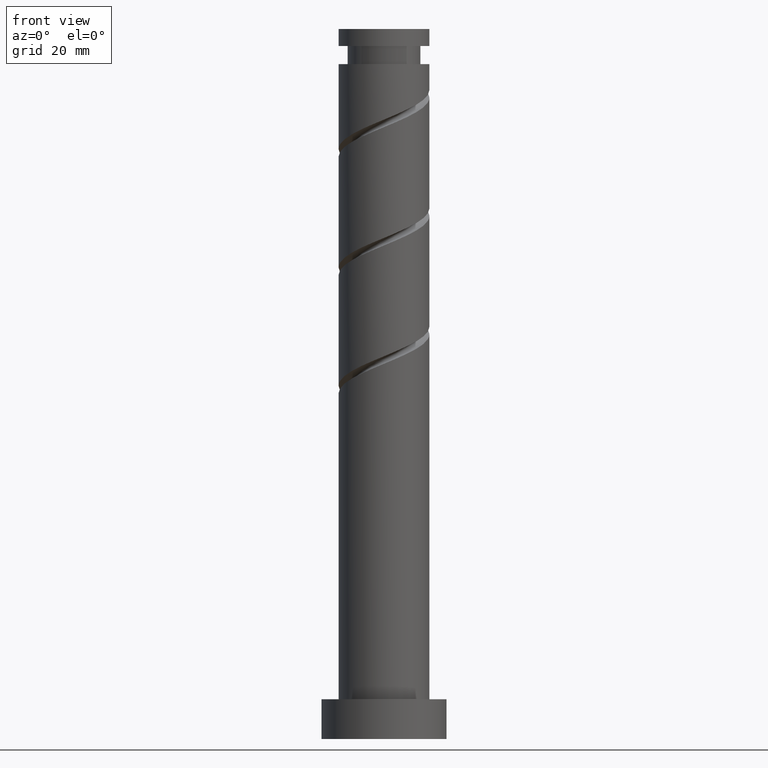
[diagram: clean part render]
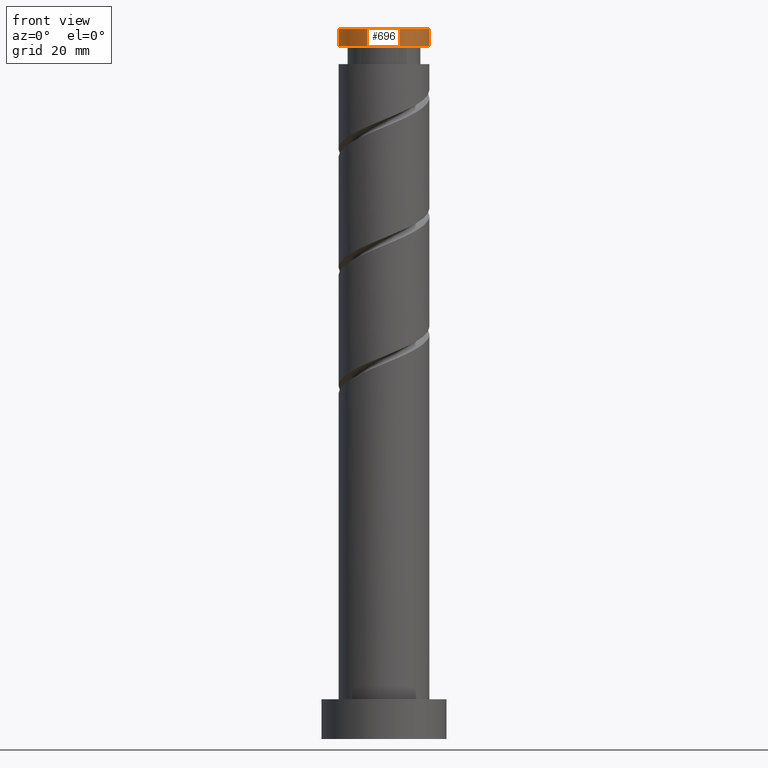
[diagram: same view with one face highlighted and labeled with its STEP entity id]
A machine part, front view. The second image highlights one B-rep face of the part: STEP entity #696.
In plain terms, the highlighted cylindrical surface (partial cylindrical patch) has radius 8 mm, axis along (-0, -0, -1).
Its self-contained STEP definition (entity closure, byte-faithful):
#4 = CARTESIAN_POINT ( 'NONE',  ( 0.000000000000000000, 0.000000000000000000, 122.0170400668946371 ) ) ;
#10 = DIRECTION ( 'NONE',  ( -1.000000000000000000, 0.000000000000000000, 0.000000000000000000 ) ) ;
#77 = CARTESIAN_POINT ( 'NONE',  ( 0.000000000000000000, 0.000000000000000000, 125.0000000000000000 ) ) ;
#108 = ORIENTED_EDGE ( 'NONE', *, *, #455, .F. ) ;
#110 = AXIS2_PLACEMENT_3D ( 'NONE', #4, #606, #10 ) ;
#190 = CARTESIAN_POINT ( 'NONE',  ( 7.999999999999998224, 9.797174393178823685E-16, 122.0170400668946371 ) ) ;
#281 = ORIENTED_EDGE ( 'NONE', *, *, #1257, .T. ) ;
#308 = ORIENTED_EDGE ( 'NONE', *, *, #1207, .F. ) ;
#310 = VECTOR ( 'NONE', #701, 1000.000000000000000 ) ;
#333 = VERTEX_POINT ( 'NONE', #431 ) ;
#380 = EDGE_LOOP ( 'NONE', ( #308, #1070, #281, #108 ) ) ;
#414 = CARTESIAN_POINT ( 'NONE',  ( 8.000000000000000000, 9.797174393178825657E-16, 125.0000000000000000 ) ) ;
#417 = CARTESIAN_POINT ( 'NONE',  ( 0.000000000000000000, 0.000000000000000000, 125.0000000000000000 ) ) ;
#431 = CARTESIAN_POINT ( 'NONE',  ( 8.000000000000000000, 9.797174393178825657E-16, 125.0000000000000000 ) ) ;
#455 = EDGE_CURVE ( 'NONE', #773, #487, #587, .T. ) ;
#462 = AXIS2_PLACEMENT_3D ( 'NONE', #77, #1417, #1536 ) ;
#472 = CARTESIAN_POINT ( 'NONE',  ( -8.000000000000000000, 0.000000000000000000, 125.0000000000000000 ) ) ;
#487 = VERTEX_POINT ( 'NONE', #1217 ) ;
#537 = AXIS2_PLACEMENT_3D ( 'NONE', #417, #800, #678 ) ;
#587 = CIRCLE ( 'NONE', #110, 7.999999999999998224 ) ;
#606 = DIRECTION ( 'NONE',  ( -0.000000000000000000, -0.000000000000000000, -1.000000000000000000 ) ) ;
#678 = DIRECTION ( 'NONE',  ( 1.000000000000000000, 0.000000000000000000, 0.000000000000000000 ) ) ;
#696 = ADVANCED_FACE ( 'NONE', ( #1274 ), #704, .T. ) ;
#701 = DIRECTION ( 'NONE',  ( -0.000000000000000000, -0.000000000000000000, -1.000000000000000000 ) ) ;
#704 = CYLINDRICAL_SURFACE ( 'NONE', #462, 8.000000000000000000 ) ;
#773 = VERTEX_POINT ( 'NONE', #190 ) ;
#800 = DIRECTION ( 'NONE',  ( 0.000000000000000000, 0.000000000000000000, 1.000000000000000000 ) ) ;
#844 = EDGE_CURVE ( 'NONE', #1159, #333, #1027, .T. ) ;
#1027 = CIRCLE ( 'NONE', #537, 8.000000000000000000 ) ;
#1070 = ORIENTED_EDGE ( 'NONE', *, *, #844, .F. ) ;
#1159 = VERTEX_POINT ( 'NONE', #1253 ) ;
#1207 = EDGE_CURVE ( 'NONE', #333, #773, #1524, .T. ) ;
#1217 = CARTESIAN_POINT ( 'NONE',  ( -7.999999999999998224, 0.000000000000000000, 122.0170400668946371 ) ) ;
#1253 = CARTESIAN_POINT ( 'NONE',  ( -8.000000000000000000, 0.000000000000000000, 125.0000000000000000 ) ) ;
#1257 = EDGE_CURVE ( 'NONE', #1159, #487, #1566, .T. ) ;
#1274 = FACE_OUTER_BOUND ( 'NONE', #380, .T. ) ;
#1358 = VECTOR ( 'NONE', #1391, 1000.000000000000000 ) ;
#1391 = DIRECTION ( 'NONE',  ( -0.000000000000000000, -0.000000000000000000, -1.000000000000000000 ) ) ;
#1417 = DIRECTION ( 'NONE',  ( -0.000000000000000000, -0.000000000000000000, -1.000000000000000000 ) ) ;
#1524 = LINE ( 'NONE', #414, #1358 ) ;
#1536 = DIRECTION ( 'NONE',  ( -1.000000000000000000, 0.000000000000000000, 0.000000000000000000 ) ) ;
#1566 = LINE ( 'NONE', #472, #310 ) ;